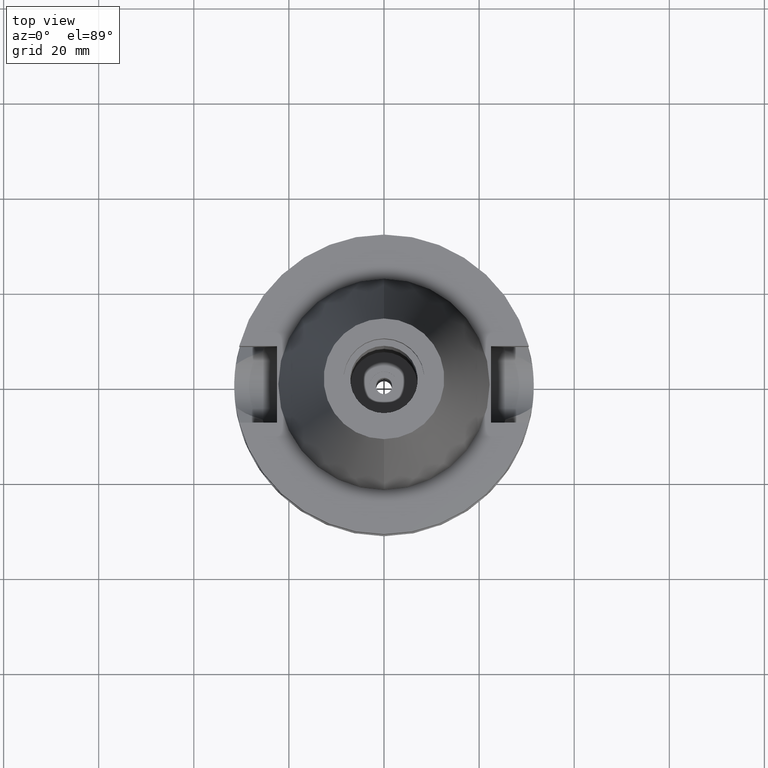
[diagram: clean part render]
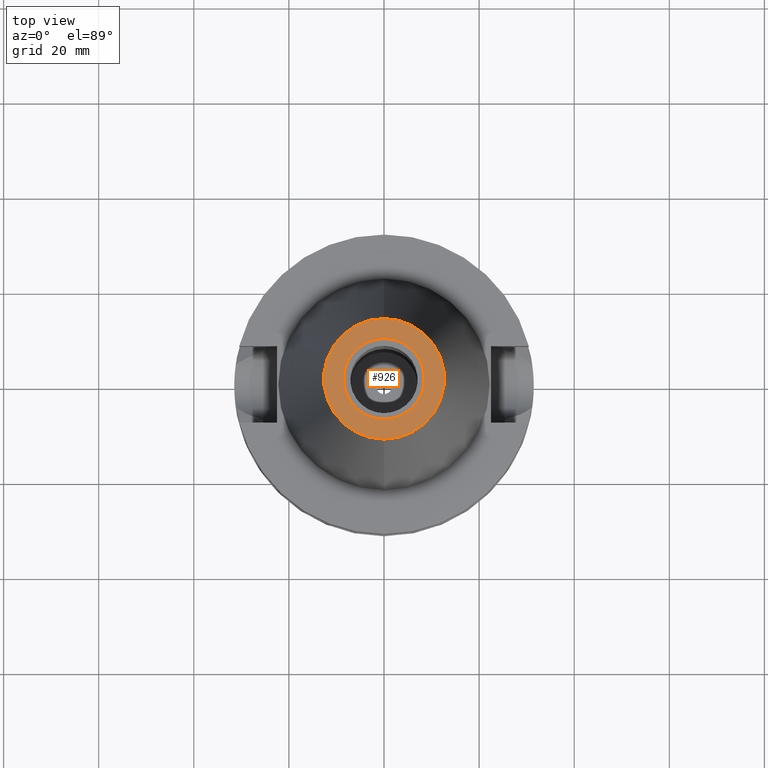
[diagram: same view with one face highlighted and labeled with its STEP entity id]
A machine part, top view. The second image highlights one B-rep face of the part: STEP entity #926.
In plain terms, the highlighted planar face has unit normal (0, 0, -1).
Its self-contained STEP definition (entity closure, byte-faithful):
#52 = ORIENTED_EDGE ( 'NONE', *, *, #1992, .F. ) ;
#62 = CARTESIAN_POINT ( 'NONE',  ( 0.0000000000000000000, 2.100085563517999935E-14, 65.40000000000000568 ) ) ;
#98 = EDGE_LOOP ( 'NONE', ( #2114, #52 ) ) ;
#145 = DIRECTION ( 'NONE',  ( 0.0000000000000000000, 0.0000000000000000000, -1.000000000000000000 ) ) ;
#157 = FACE_BOUND ( 'NONE', #98, .T. ) ;
#269 = CARTESIAN_POINT ( 'NONE',  ( 0.0000000000000000000, 12.68766899429999917, 65.40000000000000568 ) ) ;
#308 = CARTESIAN_POINT ( 'NONE',  ( 0.0000000000000000000, 2.100085563517999935E-14, 65.40000000000000568 ) ) ;
#383 = AXIS2_PLACEMENT_3D ( 'NONE', #308, #1869, #2124 ) ;
#387 = AXIS2_PLACEMENT_3D ( 'NONE', #1764, #145, #1075 ) ;
#417 = EDGE_CURVE ( 'NONE', #450, #2488, #1982, .T. ) ;
#450 = VERTEX_POINT ( 'NONE', #2404 ) ;
#501 = DIRECTION ( 'NONE',  ( 0.0000000000000000000, -1.000000000000000000, 0.0000000000000000000 ) ) ;
#606 = ORIENTED_EDGE ( 'NONE', *, *, #2334, .F. ) ;
#636 = DIRECTION ( 'NONE',  ( 0.0000000000000000000, 1.000000000000000000, 0.0000000000000000000 ) ) ;
#679 = ORIENTED_EDGE ( 'NONE', *, *, #1713, .F. ) ;
#739 = DIRECTION ( 'NONE',  ( 0.0000000000000000000, 0.0000000000000000000, 1.000000000000000000 ) ) ;
#772 = VERTEX_POINT ( 'NONE', #1097 ) ;
#843 = CARTESIAN_POINT ( 'NONE',  ( 0.0000000000000000000, 1.625106302469000024E-14, 65.40000000000000568 ) ) ;
#874 = DIRECTION ( 'NONE',  ( 0.0000000000000000000, 0.0000000000000000000, -1.000000000000000000 ) ) ;
#926 = ADVANCED_FACE ( 'NONE', ( #2000, #157 ), #2206, .F. ) ;
#1075 = DIRECTION ( 'NONE',  ( 0.0000000000000000000, -1.000000000000000000, 0.0000000000000000000 ) ) ;
#1097 = CARTESIAN_POINT ( 'NONE',  ( 0.0000000000000000000, -12.68766899429999917, 65.40000000000000568 ) ) ;
#1309 = AXIS2_PLACEMENT_3D ( 'NONE', #62, #739, #501 ) ;
#1546 = CIRCLE ( 'NONE', #1309, 8.500000000000000000 ) ;
#1604 = AXIS2_PLACEMENT_3D ( 'NONE', #843, #2613, #636 ) ;
#1713 = EDGE_CURVE ( 'NONE', #772, #2565, #2858, .T. ) ;
#1741 = CIRCLE ( 'NONE', #1604, 12.68766899429999917 ) ;
#1756 = CARTESIAN_POINT ( 'NONE',  ( 0.0000000000000000000, 1.625106302469000024E-14, 65.40000000000000568 ) ) ;
#1764 = CARTESIAN_POINT ( 'NONE',  ( 0.0000000000000000000, 2.025565805790000122E-14, 65.40000000000000568 ) ) ;
#1781 = DIRECTION ( 'NONE',  ( 0.0000000000000000000, -1.000000000000000000, 0.0000000000000000000 ) ) ;
#1869 = DIRECTION ( 'NONE',  ( 0.0000000000000000000, 0.0000000000000000000, 1.000000000000000000 ) ) ;
#1982 = CIRCLE ( 'NONE', #383, 8.500000000000000000 ) ;
#1992 = EDGE_CURVE ( 'NONE', #2488, #450, #1546, .T. ) ;
#2000 = FACE_OUTER_BOUND ( 'NONE', #2800, .T. ) ;
#2114 = ORIENTED_EDGE ( 'NONE', *, *, #417, .F. ) ;
#2124 = DIRECTION ( 'NONE',  ( 0.0000000000000000000, 1.000000000000000000, 0.0000000000000000000 ) ) ;
#2206 = PLANE ( 'NONE',  #387 ) ;
#2334 = EDGE_CURVE ( 'NONE', #2565, #772, #1741, .T. ) ;
#2404 = CARTESIAN_POINT ( 'NONE',  ( 0.0000000000000000000, 8.500000000000000000, 65.40000000000000568 ) ) ;
#2488 = VERTEX_POINT ( 'NONE', #2751 ) ;
#2565 = VERTEX_POINT ( 'NONE', #269 ) ;
#2613 = DIRECTION ( 'NONE',  ( 0.0000000000000000000, 0.0000000000000000000, -1.000000000000000000 ) ) ;
#2713 = AXIS2_PLACEMENT_3D ( 'NONE', #1756, #874, #1781 ) ;
#2751 = CARTESIAN_POINT ( 'NONE',  ( 0.0000000000000000000, -8.500000000000000000, 65.40000000000000568 ) ) ;
#2800 = EDGE_LOOP ( 'NONE', ( #606, #679 ) ) ;
#2858 = CIRCLE ( 'NONE', #2713, 12.68766899429999917 ) ;